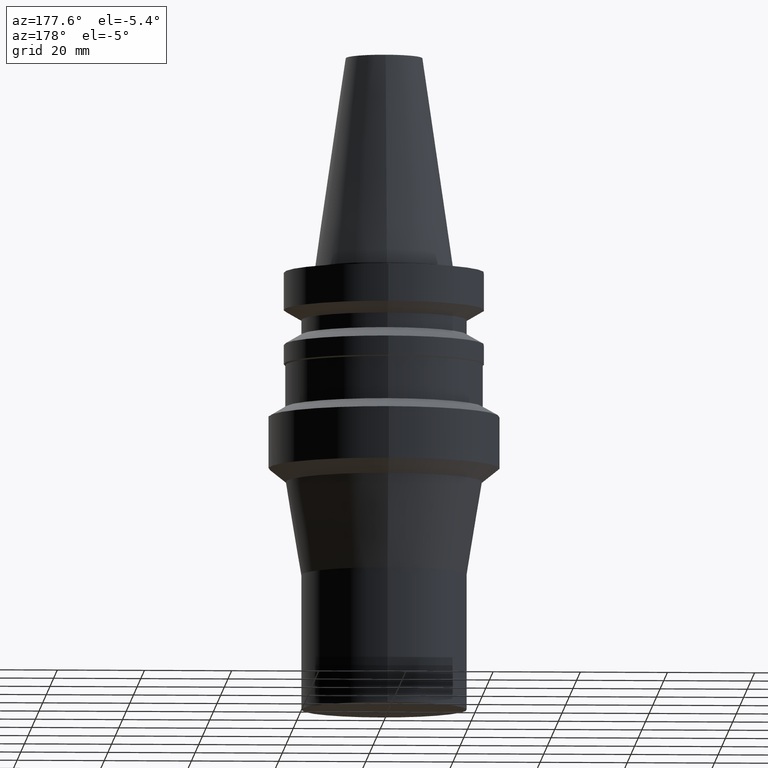
[diagram: clean part render]
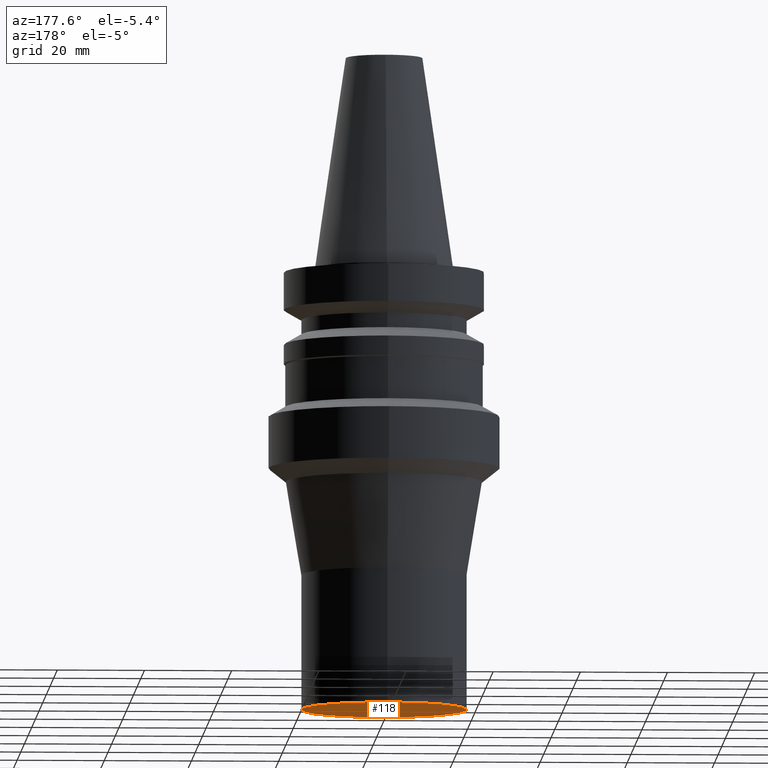
[diagram: same view with one face highlighted and labeled with its STEP entity id]
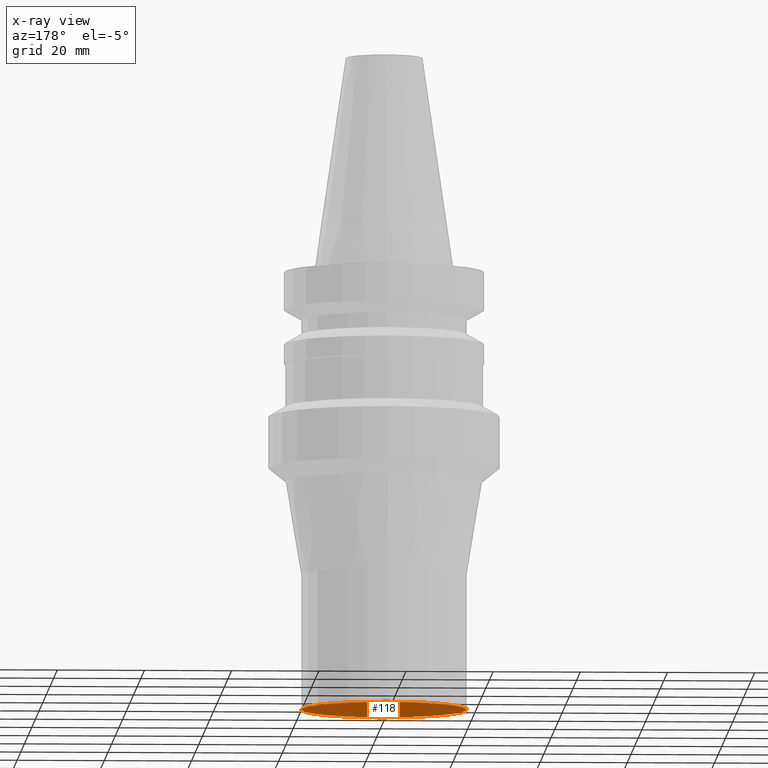
[diagram: x-ray of the same camera — body ghosted, the highlighted face saturated]
A machine part, auxiliary view. The second image highlights one B-rep face of the part: STEP entity #118.
The next image is the same camera in x-ray: the body ghosted, the highlighted face saturated — about 0% of this face is hidden behind the body in this view.
In plain terms, the highlighted planar face has unit normal (0, -0, -1).
Its self-contained STEP definition (entity closure, byte-faithful):
#73=EDGE_CURVE('Unnamed[1]',#183,#183,#184,.T.);
#118=ADVANCED_FACE('Unnamed[1]',(#253),#254,.T.);
#183=VERTEX_POINT('',#330);
#184=CIRCLE('',#331,19.0);
#253=FACE_OUTER_BOUND('',#416,.T.);
#254=PLANE('',#417);
#330=CARTESIAN_POINT('',(6.22120573966856E-015,19.0,-101.6));
#331=AXIS2_PLACEMENT_3D('',#493,#494,#495);
#416=EDGE_LOOP('',(#570));
#417=AXIS2_PLACEMENT_3D('',#571,#572,#573);
#493=CARTESIAN_POINT('',(6.22120573966856E-015,1.24424114793371E-014,-101.6));
#494=DIRECTION('',(6.12323399573677E-017,1.22464679914735E-016,-1.0));
#495=DIRECTION('',(-1.23259516440783E-032,1.0,1.22464679914735E-016));
#570=ORIENTED_EDGE('',*,*,#73,.T.);
#571=CARTESIAN_POINT('',(6.22120573966856E-015,9.50000000000001,-101.6));
#572=DIRECTION('',(6.12323399573677E-017,-5.11311337305442E-015,-1.0));
#573=DIRECTION('',(3.08260743568662E-031,1.0,-5.11311337305442E-015));